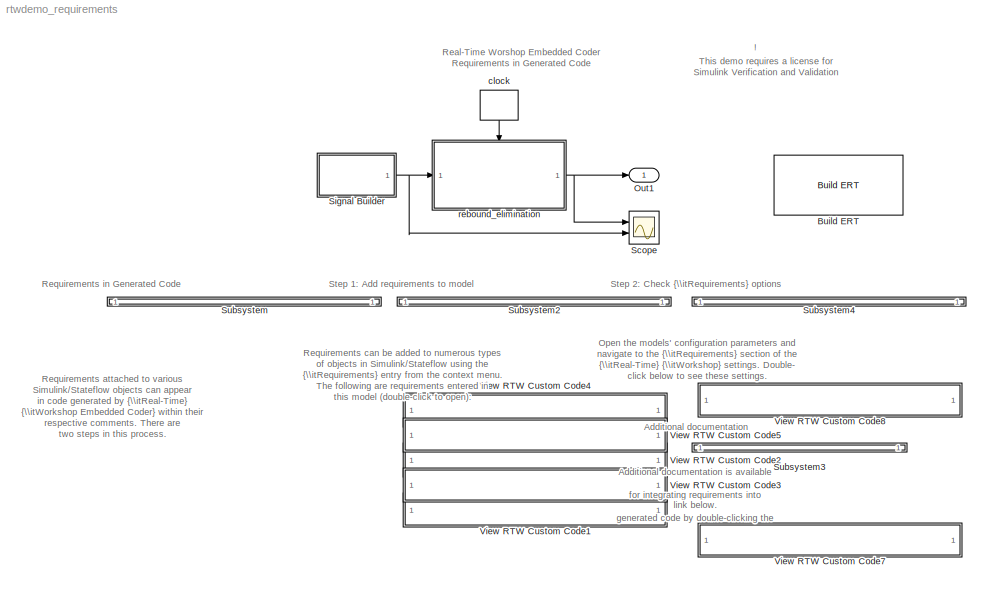
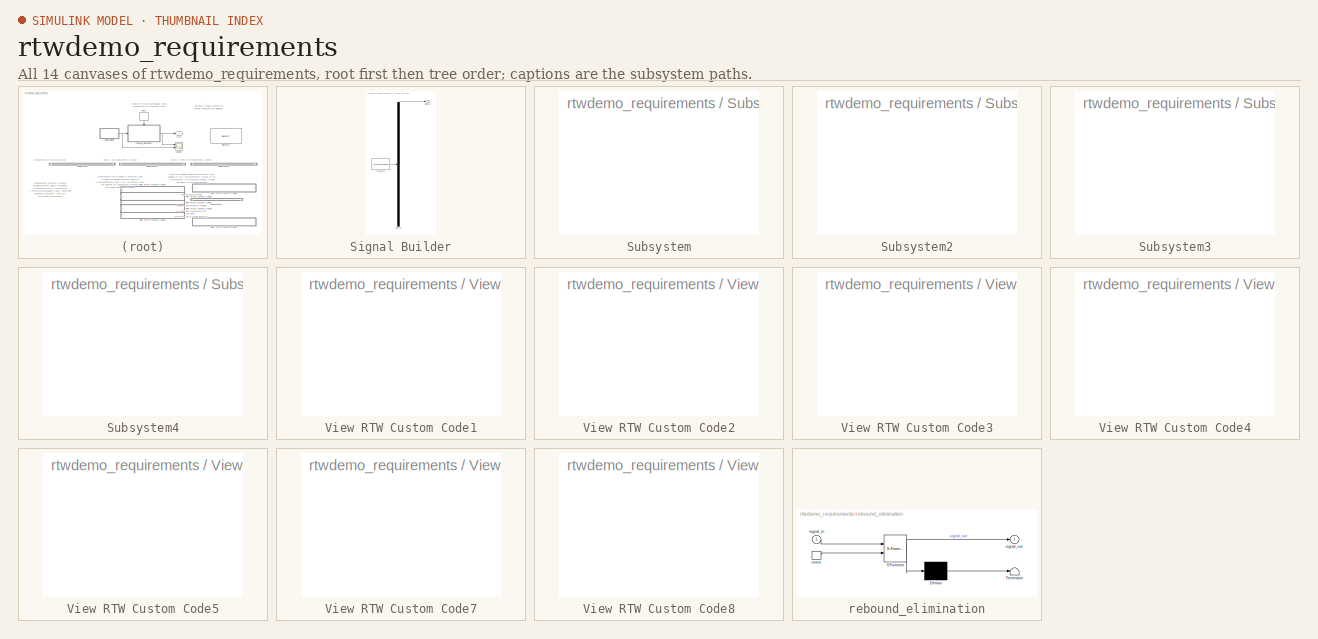
[diagram: thumbnail index - all 14 canvases of the model, root first then tree order]
MODEL rtwdemo_requirements
KIND model
CONFIG PostLoadFcn = INC=uint8(1);LIMIT=uint8(16);RESET=uint8(0);K=int32(2);
CONFIG PreLoadFcn = timestamps = 0.1:0.2:49.8;\nt=[0, timestamps, timestamps, 50];\nt = 0.01 + sort(t)';\nu = [zeros(1,25);zeros(1,25);zeros(1,25);zeros(1,25);zeros(1,25);zeros(1,25);ones(1,25);ones(1,25);zeros(1,25);zeros(1,25);ones(1,25);ones(1,25);ones(1,25);ones(1,25);ones(1,25);ones(1,25);ones(1,25);ones(1,25);ones(1,25);ones(1,25)];\nu = u(:);\nrebound1_input = [t,u];
BLOCK [Reference] Build ERT  REF=rtwdemowidgets/Build ERT
  Ports = []
  ShowPortLabels = on
  SourceBlock = rtwdemowidgets/Build ERT
  attrib_overrides = {}
BLOCK [Outport] Out1
  BusOutputAsStruct = off
  IconDisplay = Port number
BLOCK [Scope] Scope
  DataFormat = StructureWithTime
  NumInputPorts = 2
  Ports = [2]
  YMax = 1~1
  YMin = 0~0
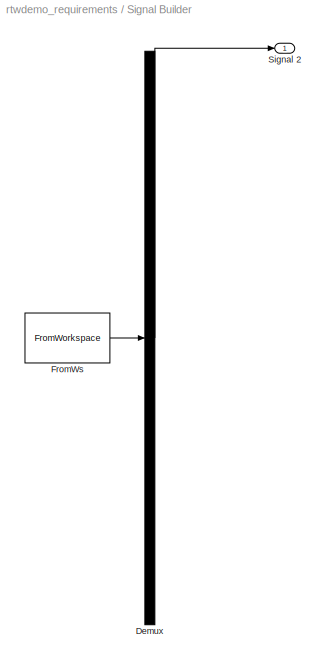
BLOCK [SubSystem] Signal Builder
  ClipboardFcn = sigbuilder_block('clipboard');
  CloseFcn = sigbuilder_block('close');
  CopyFcn = sigbuilder_block('copy');
  DeleteFcn = sigbuilder_block('delete');
  LoadFcn = sigbuilder_block('load');
  MaskDescription = Sigbuilder GUI
  MaskDisplay = plot(0,0,100,100,[10,10,40,40,10],[80,20,20,80,80],[40,10],[50,50], [40,27,10],[65,72,56],[40,25,25,10],[28,28,43,43]);
  MaskIconFrame = on
  MaskIconOpaque = off
  MaskIconRotate = port
  MaskIconUnits = autoscale
  MaskInitialization = if ~strcmp(get_param(bdroot(gcbh),'SimulationStatus'),'stopped') tuvar = sigbuilder_block('maskInit'); end
  MaskType = Sigbuilder block
  MinAlgLoopOccurrences = off
  ModelCloseFcn = sigbuilder_block('modelClose');
  NameChangeFcn = sigbuilder_block('namechange');
  OpenFcn = sigbuilder_block('open',[72.75 51.75 599.25 399.75 ]);
  Ports = [0, 1]
  PreSaveFcn = sigbuilder_block('preSave');
  PropExecContextAcrossSSBoundary = on
  RTWSystemCode = Auto
  StartFcn = sigbuilder_block('start');
  StopFcn = sigbuilder_block('stop');
  Tag = STV Subsys
  TreatAsAtomicUnit = off
BLOCK [Demux] Signal Builder/Demux
  Outputs = 1
  Ports = [1, 1]
  Tag = STV Demux
BLOCK [FromWorkspace] Signal Builder/FromWs
  SampleTime = 0
  SigBuilderData = DataTag0
  Tag = STV FromWs
  VariableName = tuvar
  VnvData = DataTag1
BLOCK [Outport] Signal Builder/Signal 2
  BusOutputAsStruct = off
  IconDisplay = Port number
  Tag = STV Outport
BLOCK [SubSystem] Subsystem
  MinAlgLoopOccurrences = off
  Ports = []
  PropExecContextAcrossSSBoundary = on
  RTWSystemCode = Auto
  TreatAsAtomicUnit = off
BLOCK [SubSystem] Subsystem2
  MinAlgLoopOccurrences = off
  Ports = []
  PropExecContextAcrossSSBoundary = on
  RTWSystemCode = Auto
  TreatAsAtomicUnit = off
BLOCK [SubSystem] Subsystem3
  MinAlgLoopOccurrences = off
  Ports = []
  PropExecContextAcrossSSBoundary = on
  RTWSystemCode = Auto
  TreatAsAtomicUnit = off
BLOCK [SubSystem] Subsystem4
  MinAlgLoopOccurrences = off
  Ports = []
  PropExecContextAcrossSSBoundary = on
  RTWSystemCode = Auto
  TreatAsAtomicUnit = off
BLOCK [SubSystem] View RTW Custom Code1
  MaskDisplay = patch(arrowXvec, arrowYvec);\ntext(textX, textY, 'Stateflow Graphical Function');
  MaskIconFrame = off
  MaskIconOpaque = on
  MaskIconRotate = none
  MaskIconUnits = pixels
  MaskInitialization = pos    = get_param(gcb, 'Position');\nwidth  = pos(3) - pos(1);\nheight = pos(4) - pos(2);\n\n\n% Compute arrow coordinates\narrowW = width  / 20;\narrowH = height / 2.5;\narrowX = width  / 50;\narrowY = height / 3;\narrowXvec = [arrowX, arrowX, arrowX + arrowW];\narrowYvec = [arrowY, arrowY + arrowH, arrowY + arrowH / 2];\n\n% Compute text position\ntextXbuff = width / 30;\ntextX  = arrowX + arro...<+39ch>  <repeated x7 — deduplicated; at blocks: View RTW Custom Code1, View RTW Custom Code2, View RTW Custom Code3, View RTW Custom Code4, View RTW Custom Code5, View RTW Custom Code7, View RTW Custom Code8>
  MinAlgLoopOccurrences = off
  OpenFcn = clockblock='rtwdemo_requirements/clock';                                  \nsigbblock='rtwdemo_requirements/Signal Builder';                          \nhilite_system(sigbblock,'none');                                          \nhilite_system(clockblock,'none');                                         \nfunc=find(sfroot,'-isa','Stateflow.Function','-and','Tag','req_function');\nsf('Open',func.id); ...<+76ch>
  Ports = []
  PropExecContextAcrossSSBoundary = on
  RTWSystemCode = Auto
  TreatAsAtomicUnit = off
BLOCK [SubSystem] View RTW Custom Code2
  MaskDisplay = patch(arrowXvec, arrowYvec);\ntext(textX, textY, 'Stateflow State');
  MaskIconFrame = off
  MaskIconOpaque = on
  MaskIconRotate = none
  MaskIconUnits = pixels
  MinAlgLoopOccurrences = off
  OpenFcn = clockblock='rtwdemo_requirements/clock';                                  \nsigbblock='rtwdemo_requirements/Signal Builder';                          \nhilite_system(sigbblock,'none');                                          \nhilite_system(clockblock,'none');                                         \ntrans=find(sfroot,'-isa','Stateflow.Transition','-and','Tag','req_trans');\nsf('Open',trans.id);...<+77ch>
  Ports = []
  PropExecContextAcrossSSBoundary = on
  RTWSystemCode = Auto
  TreatAsAtomicUnit = off
BLOCK [SubSystem] View RTW Custom Code3
  MaskDisplay = patch(arrowXvec, arrowYvec);\ntext(textX, textY, 'Stateflow Transition');
  MaskIconFrame = off
  MaskIconOpaque = on
  MaskIconRotate = none
  MaskIconUnits = pixels
  MinAlgLoopOccurrences = off
  OpenFcn = clockblock='rtwdemo_requirements/clock';                                  \nsigbblock='rtwdemo_requirements/Signal Builder';                          \nhilite_system(sigbblock,'none');                                          \nhilite_system(clockblock,'none');                                         \ntrans=find(sfroot,'-isa','Stateflow.Transition','-and','Tag','req_trans');\nsf('Open',trans.id);...<+77ch>
  Ports = []
  PropExecContextAcrossSSBoundary = on
  RTWSystemCode = Auto
  TreatAsAtomicUnit = off
BLOCK [SubSystem] View RTW Custom Code4
  MaskDisplay = patch(arrowXvec, arrowYvec);\ntext(textX, textY, 'Simulink Block');
  MaskIconFrame = off
  MaskIconOpaque = on
  MaskIconRotate = none
  MaskIconUnits = pixels
  MinAlgLoopOccurrences = off
  OpenFcn = clockblock='rtwdemo_requirements/clock';        \nsigbblock='rtwdemo_requirements/Signal Builder';\nclockblockh=get_param(clockblock,'handle');     \nhilite_system(sigbblock,'none');                \nhilite_system(clockblockh);                     \nrmi('edit',clockblockh);
  Ports = []
  PropExecContextAcrossSSBoundary = on
  RTWSystemCode = Auto
  TreatAsAtomicUnit = off
BLOCK [SubSystem] View RTW Custom Code5
  MaskDisplay = patch(arrowXvec, arrowYvec);\ntext(textX, textY, 'Simulink Signal Builder');
  MaskIconFrame = off
  MaskIconOpaque = on
  MaskIconRotate = none
  MaskIconUnits = pixels
  MinAlgLoopOccurrences = off
  OpenFcn = sigbblock='rtwdemo_requirements/Signal Builder';\nclockblock='rtwdemo_requirements/clock';        \nhilite_system(clockblock,'none');               \nhilite_system(sigbblock);                       \nopen_system(sigbblock);
  Ports = []
  PropExecContextAcrossSSBoundary = on
  RTWSystemCode = Auto
  TreatAsAtomicUnit = off
BLOCK [SubSystem] View RTW Custom Code7
  MaskDisplay = patch(arrowXvec, arrowYvec);\ntext(textX, textY, 'Requirements Documentation');
  MaskIconFrame = off
  MaskIconOpaque = on
  MaskIconRotate = none
  MaskIconUnits = pixels
  MinAlgLoopOccurrences = off
  OpenFcn = helpview([docroot '/mapfiles/slvnv.map'], 'managing_modeling_requirements')
  Ports = []
  PropExecContextAcrossSSBoundary = on
  RTWSystemCode = Auto
  TreatAsAtomicUnit = off
BLOCK [SubSystem] View RTW Custom Code8
  MaskDisplay = patch(arrowXvec, arrowYvec);\ntext(textX, textY, 'Open Requirements Settings');
  MaskIconFrame = off
  MaskIconOpaque = on
  MaskIconRotate = none
  MaskIconUnits = pixels
  MinAlgLoopOccurrences = off
  OpenFcn = model = bdroot;                             \nslCfgPrmDlg(model,'Open');                  \nslCfgPrmDlg(bdroot,'TurnToPage','Comments');
  Ports = []
  PropExecContextAcrossSSBoundary = on
  RTWSystemCode = Auto
  TreatAsAtomicUnit = off
BLOCK [DiscretePulseGenerator] clock
  Period = 0.002
  Ports = [0, 1]
  PulseType = Time based
  PulseWidth = 50
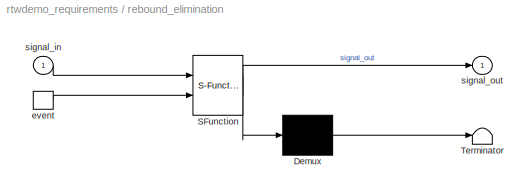
BLOCK [SubSystem] rebound_elimination
  MaskDescription = Stateflow diagram
  MaskDisplay = plot(sf('Private','sfblk','xIcon'),sf('Private','sfblk','yIcon'));text(0.5,0,sf('Private', 'sfblk', 'tIcon'),'HorizontalAl','Center','VerticalAl','Bottom');
  MaskIconFrame = off
  MaskIconOpaque = off
  MaskIconRotate = none
  MaskIconUnits = autoscale
  MaskSelfModifiable = on
  MaskType = Stateflow
  MinAlgLoopOccurrences = off
  Ports = [1, 1, 0, 1]
  PropExecContextAcrossSSBoundary = on
  RTWSystemCode = Auto
  TreatAsAtomicUnit = off
BLOCK [Demux] rebound_elimination/ Demux 
  Outputs = 1
  Ports = [1, 1]
BLOCK [S-Function] rebound_elimination/ SFunction 
  FunctionName = sf_sfun
  PortCounts = [2 2]
  Ports = [2, 2]
  Tag = Stateflow S-Function rtwdemo_requirements 2
BLOCK [Terminator] rebound_elimination/ Terminator 
BLOCK [TriggerPort] rebound_elimination/event
  Ports = [0, 1]
  ShowOutputPort = on
BLOCK [Inport] rebound_elimination/signal_in
  IconDisplay = Port number
  LatchInput = off
  Port = 1
BLOCK [Outport] rebound_elimination/signal_out
  BusOutputAsStruct = off
  IconDisplay = Port number
ANNOTATION (root): !
ANNOTATION (root): Additional documentation
ANNOTATION (root): Additional documentation is available\nfor integrating requirements into\ngenerated code by double-clicking the\nlink below.
ANNOTATION (root): Open the models' configuration parameters and \nnavigate to the {\\itRequirements} section of the\n{\\itReal-Time} {\\itWorkshop} settings. Double-\nclick below to see these settings.
ANNOTATION (root): Real-Time Worshop Embedded Coder\nRequirements in Generated Code
ANNOTATION (root): Requirements attached to various\nSimulink/Stateflow objects can appear\nin code generated by {\\itReal-Time}\n{\\itWorkshop Embedded Coder} within their\nrespective comments. There are\ntwo steps in this process.\n\n{\\bf1)} Add requirements to model\n{\\bf2)} Check option in configuration parameters
ANNOTATION (root): Requirements can be added to numerous types\nof objects in Simulink/Stateflow using the\n{\\itRequirements} entry from the context menu.\nThe following are requirements entered in\nthis model (double-click to open):
ANNOTATION (root): Requirements in Generated Code
ANNOTATION (root): Step 1: Add requirements to model
ANNOTATION (root): Step 2: Check {\\itRequirements} options
ANNOTATION (root): This demo requires a license for\nSimulink Verification and Validation
LINE Signal Builder/Demux:1 -> Signal Builder/Signal 2:1
LINE Signal Builder/FromWs:1 -> Signal Builder/Demux:1
NET Signal Builder:1 -> Scope:2, rebound_elimination:1
LINE clock:1 -> rebound_elimination:trigger
LINE rebound_elimination/ Demux :1 -> rebound_elimination/ Terminator :1
LINE rebound_elimination/ SFunction :1 -> rebound_elimination/ Demux :1
LINE rebound_elimination/ SFunction :2 -> rebound_elimination/signal_out:1
LINE rebound_elimination/event:1 -> rebound_elimination/ SFunction :2
LINE rebound_elimination/signal_in:1 -> rebound_elimination/ SFunction :1
NET rebound_elimination:1 -> Out1:1, Scope:1
note: NET lines group one-source signal fan-out (src -> all destinations, sorted); 1:1 wires keep LINE
CHART rebound_elimination states=2 transitions=5
  STATE_LABEL 'rebound_state\\nduring:\\nsignal_out = rebound_fcn(previous_input, previous_output, signal_in);\\nprevious_input = signal_in;\\nprevious_output = signal_out;'
  STATE_LABEL 'result=rebound_fcn(prev_in, prev_out, curr_in)'
